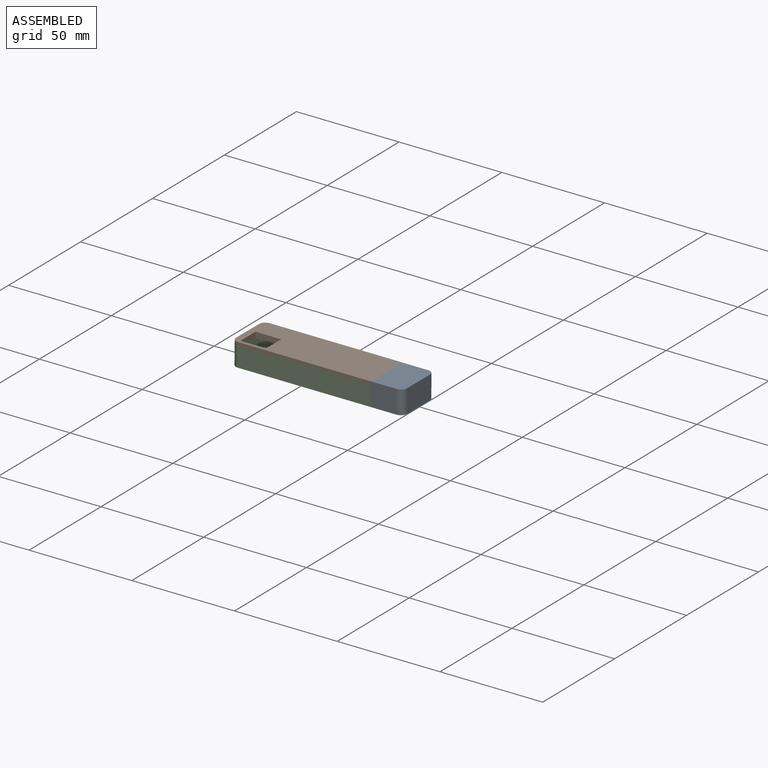
[diagram: assembled view]
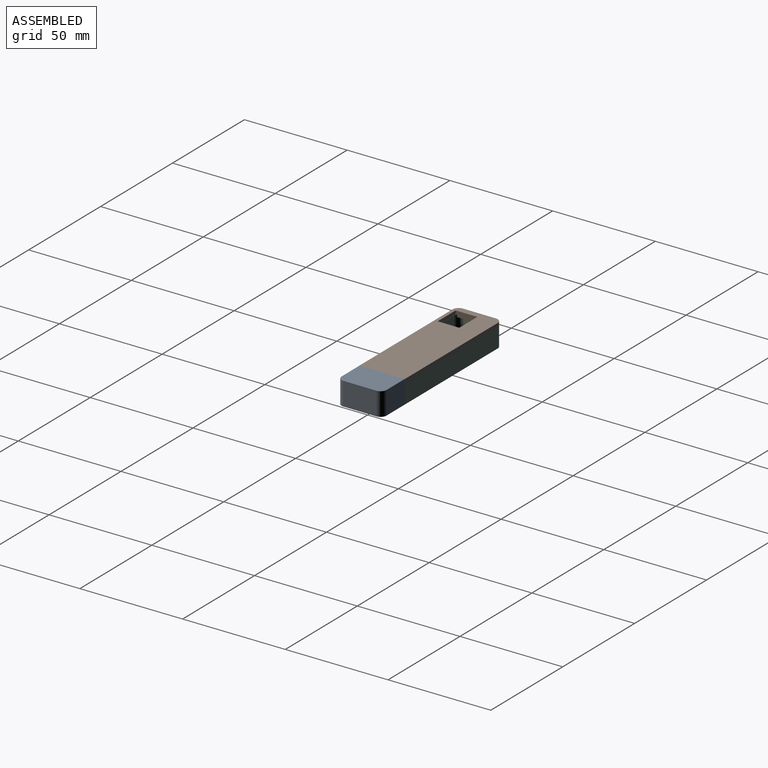
[diagram: assembled view, second angle]
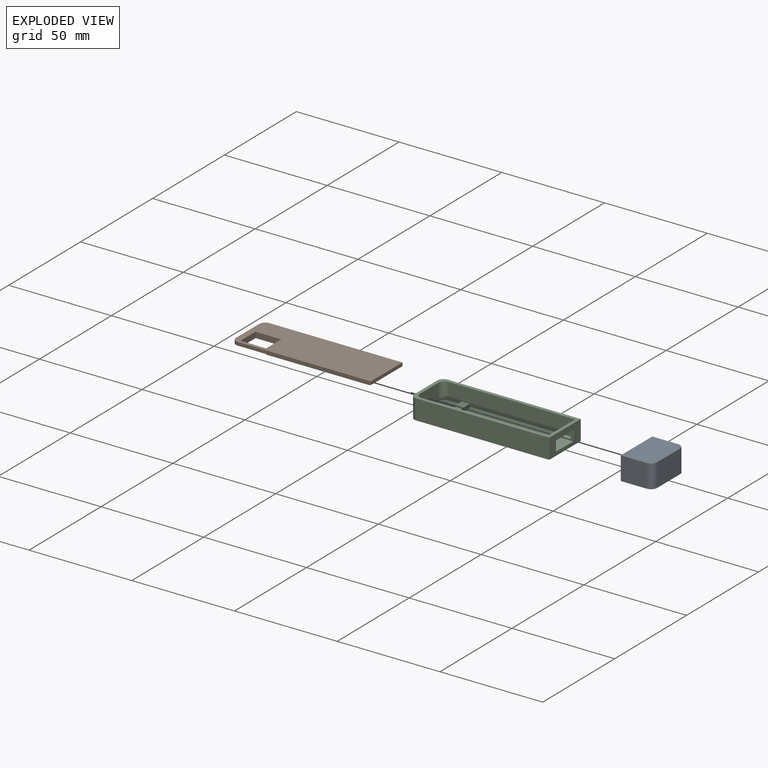
[diagram: exploded view]
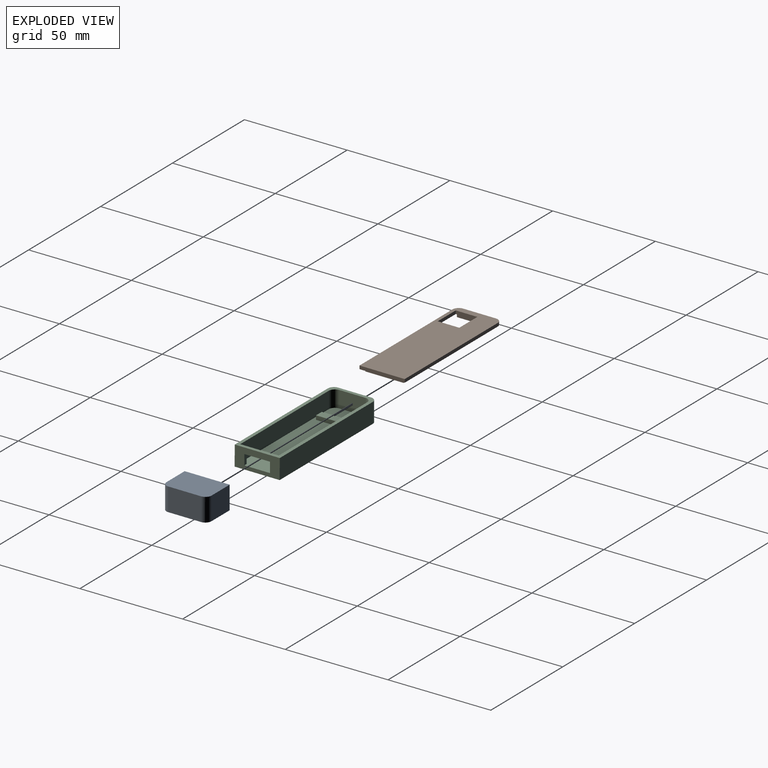
[diagram: exploded view, second angle]
ASSEMBLY  parts=3 mates=2
PART A: 13 faces, bbox 21.9x11.3x15.6 mm
  f0: plane 12.6x11.3mm, normal (-1,0,0), area 142.4mm2, adj f1,f7,f8,f11
  f1: plane 21.9x15.6mm, normal (0,-1,0), area 337.8mm2, adj f0,f2,f8,f10,f11,f12
  f2: plane 12.6x11.3mm, normal (1,0,0), area 142.4mm2, adj f1,f7,f8,f12
  f3: plane 14x12.5mm, normal (0,1,0), area 175mm2, adj f4,f6,f8,f9
  f4: plane 14x5mm, normal (1,0,0), area 70mm2, adj f3,f5,f8,f9
  f5: plane 14x12.5mm, normal (0,-1,0), area 175mm2, adj f4,f6,f8,f9
  f6: plane 14x5mm, normal (-1,0,0), area 70mm2, adj f3,f5,f8,f9
  f7: plane 21.9x15.6mm, normal (0,1,0), area 337.8mm2, adj f0,f2,f8,f10,f11,f12
  f8: plane 21.9x11.3mm, normal (0,0,-1), area 185mm2, adj f0,f1,f2,f3,f4,f5,f6,f7
  f9: plane 12.5x5mm, normal (0,0,-1), area 62.5mm2, adj f3,f4,f5,f6
  f10: plane 15.9x11.3mm, normal (0,0,1), area 179.7mm2, adj f1,f7,f11,f12
  f11: cylinder r=3mm len=11.3mm, axis (0,1,0), area 53.2mm2, adj f0,f1,f7,f10
  f12: cylinder r=3mm len=11.3mm, axis (0,-1,0), area 53.2mm2, adj f1,f2,f7,f10
PART B: 19 faces, bbox 67.7x22x2.8 mm
  f0: plane 50.4x1.2mm, normal (0,1,0), area 60.5mm2, adj f1,f10,f14,f17
  f1: plane 67.7x22mm, normal (0,0,1), area 291.9mm2, adj f0,f2,f3,f4,f5,f6,f7,f9
  f2: plane 16x1.6mm, normal (-1,0,0), area 25.6mm2, adj f1,f3,f7,f8
  f3: cylinder r=3mm len=3mm, axis (0,0,-1), area 7.5mm2, adj f1,f2,f4,f8
  f4: plane 64.7x1.6mm, normal (0,-1,0), area 103.5mm2, adj f1,f3,f5,f8
  f5: plane 22x1.6mm, normal (1,0,0), area 35.2mm2, adj f1,f4,f6,f8
  f6: plane 64.7x1.6mm, normal (0,1,0), area 103.5mm2, adj f1,f5,f7,f8
  f7: cylinder r=3mm len=3mm, axis (0,0,-1), area 7.5mm2, adj f1,f2,f6,f8
  f8: plane 67.7x22mm, normal (0,0,-1), area 1354.3mm2, adj f2,f3,f4,f5,f6,f7,f15,f16
  f9: plane 61.3x1.2mm, normal (0,-1,0), area 73.6mm2, adj f1,f10,f13,f14
  f10: plane 18.6x1.2mm, normal (1,0,0), area 22.3mm2, adj f0,f1,f9,f14
  f11: cylinder r=3mm len=2.54mm, axis (0,0,-1), area 3.6mm2, adj f1,f12,f14,f15
  f12: plane 12.6x1.2mm, normal (-1,0,0), area 15.1mm2, adj f1,f11,f13,f14
  f13: cylinder r=3mm len=3mm, axis (0,0,-1), area 5.7mm2, adj f1,f9,f12,f14
  f14: plane 64.3x18.6mm, normal (0,0,1), area 1062.4mm2, adj f0,f9,f10,f11,f12,f13,f15,f17
  f15: plane 10.5x2.8mm, normal (1,0,0), area 28.7mm2, adj f1,f8,f11,f14,f16,f18
  f16: plane 12.5x1.6mm, normal (0,-1,0), area 20mm2, adj f1,f8,f15,f17
  f17: plane 10.5x2.8mm, normal (-1,0,0), area 29.3mm2, adj f0,f1,f8,f14,f16,f18
  f18: plane 12.5x2.8mm, normal (0,1,0), area 35mm2, adj f8,f14,f15,f17
PART C: 24 faces, bbox 67.7x21.9x9.7 mm
  f0: plane 64.5x18.7mm, normal (0,0,1), area 1140mm2, adj f6,f7,f8,f9,f10,f11,f19,f20
  f1: cylinder r=3mm len=9.7mm, axis (0,0,-1), area 45.7mm2, adj f2,f12,f13,f14
  f2: plane 15.9x9.7mm, normal (-1,0,0), area 154.2mm2, adj f1,f3,f13,f14
  f3: cylinder r=3mm len=9.7mm, axis (0,0,-1), area 45.7mm2, adj f2,f4,f13,f14
  f4: plane 64.7x9.7mm, normal (0,-1,0), area 627.6mm2, adj f3,f5,f13,f14
  f5: plane 21.9x9.7mm, normal (1,0,0), area 149.9mm2, adj f4,f12,f13,f14,f15,f16,f17,f18
  f6: cylinder r=3mm len=8.1mm, axis (0,0,-1), area 38.2mm2, adj f0,f7,f11,f13
  f7: plane 12.7x8.1mm, normal (1,0,0), area 102.9mm2, adj f0,f6,f8,f13
  f8: cylinder r=3mm len=8.1mm, axis (0,0,-1), area 38.2mm2, adj f0,f7,f9,f13
  f9: plane 61.5x8.1mm, normal (0,-1,0), area 498.2mm2, adj f0,f8,f10,f13
  f10: plane 18.7x8.1mm, normal (-1,0,0), area 89mm2, adj f0,f9,f11,f13,f15,f16,f17,f18
  f11: plane 61.5x8.1mm, normal (0,1,0), area 498.2mm2, adj f0,f6,f10,f13
  f12: plane 64.7x9.7mm, normal (0,1,0), area 627.6mm2, adj f1,f5,f13,f14
  f13: plane 67.7x21.9mm, normal (0,0,1), area 276.5mm2, adj f1,f2,f3,f4,f5,f6,f7,f8
  f14: plane 67.7x21.9mm, normal (0,0,-1), area 1478.8mm2, adj f1,f2,f3,f4,f5,f12
  f15: plane 12.5x1.6mm, normal (0,0,1), area 20mm2, adj f5,f10,f16,f17
  f16: plane 5x1.6mm, normal (0,1,0), area 8mm2, adj f5,f10,f15,f18
  f17: plane 5x1.6mm, normal (0,-1,0), area 8mm2, adj f5,f10,f15,f18
  f18: plane 12.5x1.6mm, normal (0,0,-1), area 20mm2, adj f5,f10,f16,f17
  f19: plane 15.64x2mm, normal (-1,0,0), area 31.3mm2, adj f0,f20,f22,f23
  f20: plane 3.98x2mm, normal (0,-1,0), area 8mm2, adj f0,f19,f21,f23
  f21: plane 15.64x2mm, normal (1,0,0), area 31.3mm2, adj f0,f20,f22,f23
  f22: plane 3.98x2mm, normal (0,1,0), area 8mm2, adj f0,f19,f21,f23
  f23: plane 15.64x3.98mm, normal (0,0,1), area 62.3mm2, adj f19,f20,f21,f22
PLACE A rot(axis=(0.58,0.58,0.58),119.9deg) t=(85.86,-3,-26.42)mm
PLACE B rot(axis=(1,0,0),179.8deg) t=(57.26,-37.31,4.77)mm
PLACE C rot(axis=(-1,0,0),0.2deg) t=(51.94,-4.34,-6.66)mm
MATE slider B.f10 <-> C.f10  axis (1,0,0) through (84.26,-2.75,3.03)mm
MATE fastened C.f5 <-> A.f8  axis (1,0,0) through (85.86,-2.76,0.13)mm
